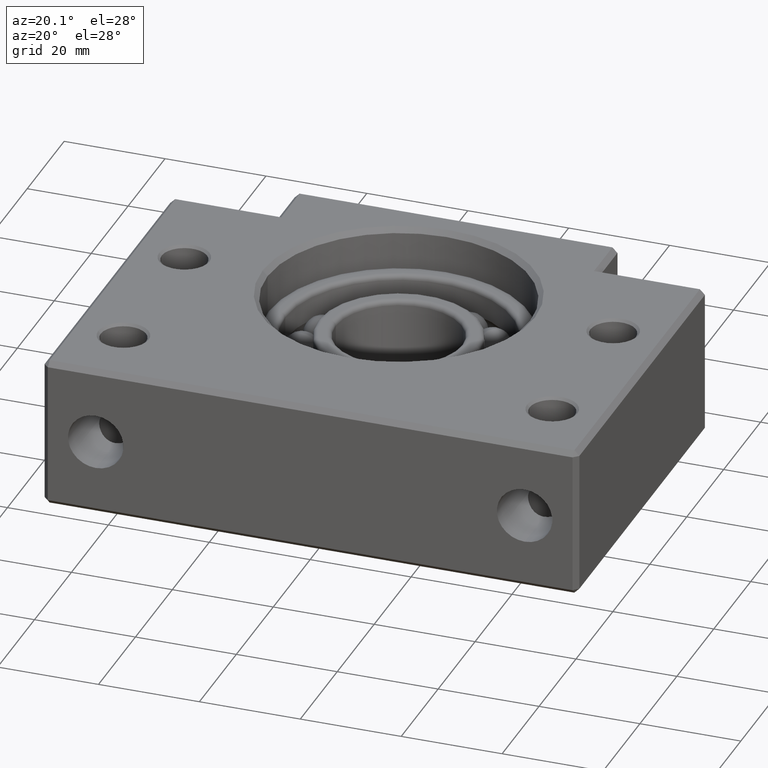
[diagram: clean part render]
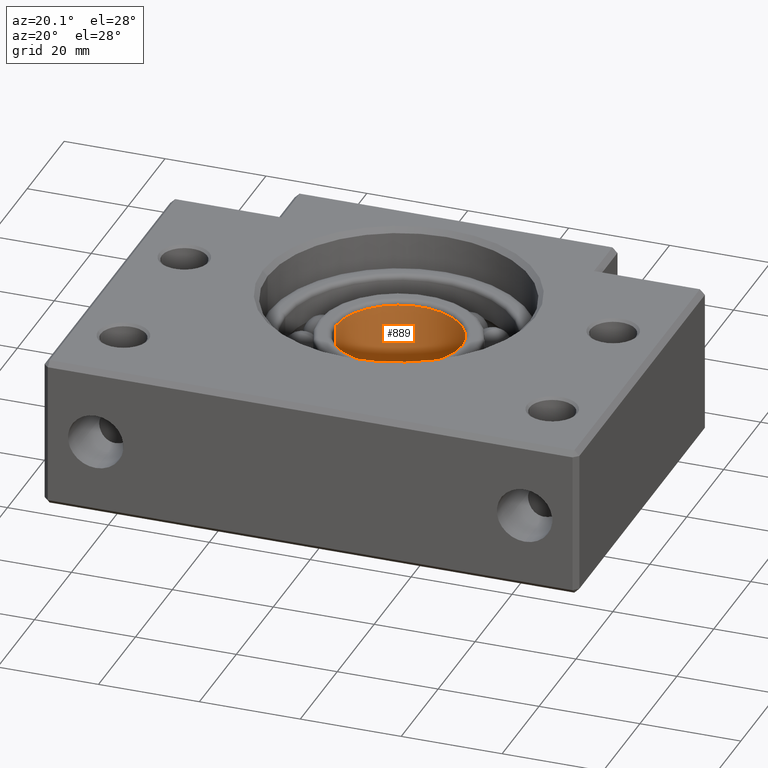
[diagram: same view with one face highlighted and labeled with its STEP entity id]
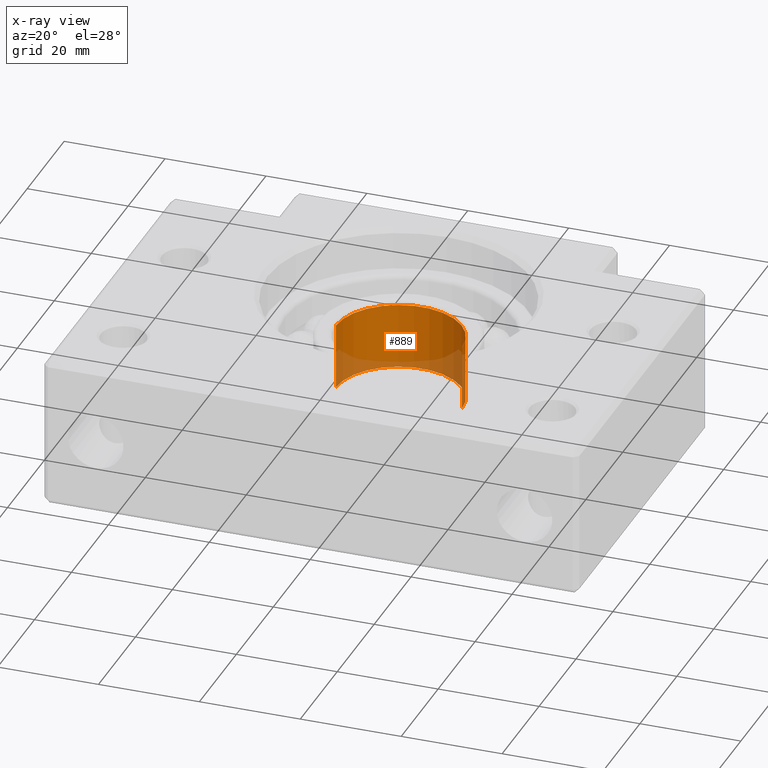
[diagram: x-ray of the same camera — body ghosted, the highlighted face saturated]
A machine part, auxiliary view. The second image highlights one B-rep face of the part: STEP entity #889.
The next image is the same camera in x-ray: the body ghosted, the highlighted face saturated — about 24% of this face is hidden behind the body in this view.
In plain terms, the highlighted cylindrical surface (partial cylindrical patch) has radius 12.5 mm, axis along (-0, -0, 1).
Its self-contained STEP definition (entity closure, byte-faithful):
#394 = VERTEX_POINT ( 'NONE', #2341 ) ;
#397 = VERTEX_POINT ( 'NONE', #2340 ) ;
#398 = EDGE_CURVE ( 'NONE', #397, #394, #2339, .T. ) ;
#593 = VERTEX_POINT ( 'NONE', #2695 ) ;
#598 = EDGE_CURVE ( 'NONE', #394, #593, #2682, .T. ) ;
#647 = EDGE_CURVE ( 'NONE', #812, #593, #2836, .T. ) ;
#803 = EDGE_CURVE ( 'NONE', #397, #812, #3018, .T. ) ;
#812 = VERTEX_POINT ( 'NONE', #2997 ) ;
#877 = ORIENTED_EDGE ( 'NONE', *, *, #647, .T. ) ;
#878 = ORIENTED_EDGE ( 'NONE', *, *, #803, .T. ) ;
#879 = ORIENTED_EDGE ( 'NONE', *, *, #398, .F. ) ;
#880 = EDGE_LOOP ( 'NONE', ( #885, #879, #878, #877 ) ) ;
#885 = ORIENTED_EDGE ( 'NONE', *, *, #598, .F. ) ;
#889 = ADVANCED_FACE ( 'NONE', ( #3137 ), #3133, .F. ) ;
#2335 = DIRECTION ( 'NONE',  ( 1.000000000000000000, 0.0000000000000000000, 0.0000000000000000000 ) ) ;
#2336 = DIRECTION ( 'NONE',  ( -0.0000000000000000000, -0.0000000000000000000, 1.000000000000000000 ) ) ;
#2337 = CARTESIAN_POINT ( 'NONE',  ( 1.124572892961660300E-014, 48.00000000000000000, -7.000000000000013300 ) ) ;
#2338 = AXIS2_PLACEMENT_3D ( 'NONE', #2337, #2336, #2335 ) ;
#2339 = CIRCLE ( 'NONE', #2338, 12.50000000000000000 ) ;
#2340 = CARTESIAN_POINT ( 'NONE',  ( 12.50000000000001100, 48.00000000000000000, -7.000000000000013300 ) ) ;
#2341 = CARTESIAN_POINT ( 'NONE',  ( -12.49999999999999100, 48.00000000000000000, -7.000000000000013300 ) ) ;
#2679 = DIRECTION ( 'NONE',  ( -0.0000000000000000000, -0.0000000000000000000, 1.000000000000000000 ) ) ;
#2680 = VECTOR ( 'NONE', #2679, 1000.000000000000000 ) ;
#2681 = CARTESIAN_POINT ( 'NONE',  ( -12.49999999999999100, 48.00000000000000000, 8.339432060501884800 ) ) ;
#2682 = LINE ( 'NONE', #2681, #2680 ) ;
#2695 = CARTESIAN_POINT ( 'NONE',  ( -12.49999999999999100, 48.00000000000000000, 5.999999999999984900 ) ) ;
#2832 = DIRECTION ( 'NONE',  ( 1.000000000000000000, 0.0000000000000000000, 0.0000000000000000000 ) ) ;
#2833 = DIRECTION ( 'NONE',  ( -0.0000000000000000000, -0.0000000000000000000, 1.000000000000000000 ) ) ;
#2834 = CARTESIAN_POINT ( 'NONE',  ( 1.124572892961660300E-014, 48.00000000000000000, 5.999999999999984900 ) ) ;
#2835 = AXIS2_PLACEMENT_3D ( 'NONE', #2834, #2833, #2832 ) ;
#2836 = CIRCLE ( 'NONE', #2835, 12.50000000000000000 ) ;
#2997 = CARTESIAN_POINT ( 'NONE',  ( 12.50000000000001100, 48.00000000000000000, 5.999999999999984900 ) ) ;
#3015 = DIRECTION ( 'NONE',  ( -0.0000000000000000000, -0.0000000000000000000, 1.000000000000000000 ) ) ;
#3016 = VECTOR ( 'NONE', #3015, 1000.000000000000000 ) ;
#3017 = CARTESIAN_POINT ( 'NONE',  ( 12.50000000000001100, 48.00000000000000000, 8.339432060501884800 ) ) ;
#3018 = LINE ( 'NONE', #3017, #3016 ) ;
#3127 = DIRECTION ( 'NONE',  ( 1.000000000000000000, 0.0000000000000000000, 0.0000000000000000000 ) ) ;
#3128 = DIRECTION ( 'NONE',  ( -0.0000000000000000000, -0.0000000000000000000, 1.000000000000000000 ) ) ;
#3129 = CARTESIAN_POINT ( 'NONE',  ( 1.124572892961660300E-014, 48.00000000000000000, 8.339432060501884800 ) ) ;
#3130 = AXIS2_PLACEMENT_3D ( 'NONE', #3129, #3128, #3127 ) ;
#3133 = CYLINDRICAL_SURFACE ( 'NONE', #3130, 12.50000000000000000 ) ;
#3137 = FACE_OUTER_BOUND ( 'NONE', #880, .T. ) ;